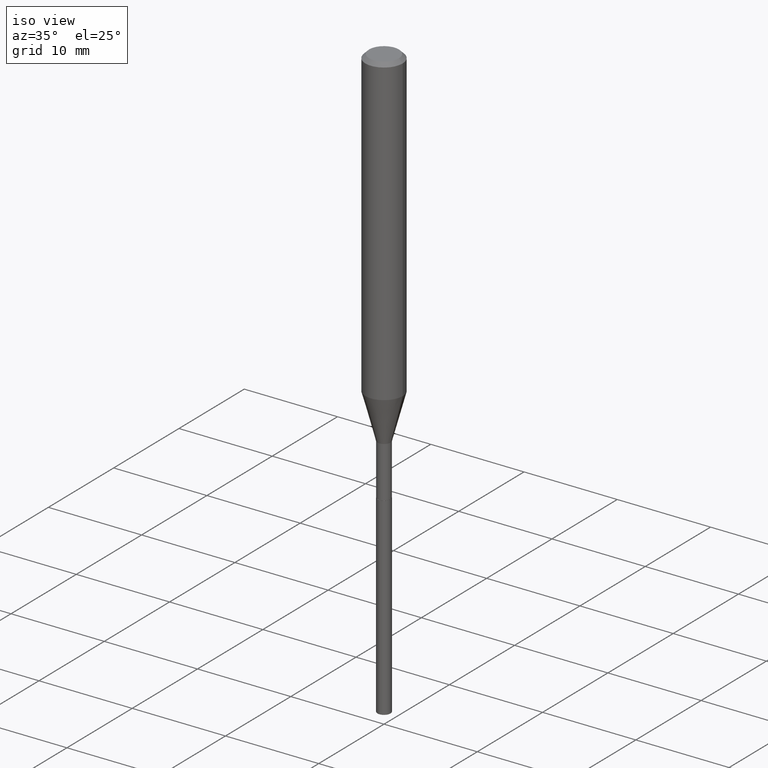
[diagram: clean part render]
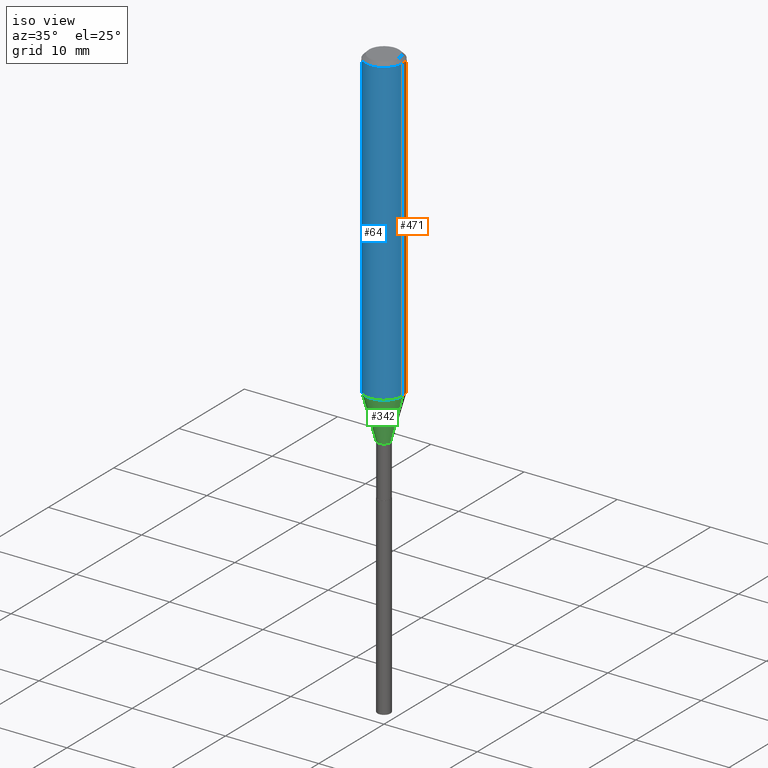
[diagram: same view with three faces highlighted in distinct colors, each labeled with its STEP entity id]
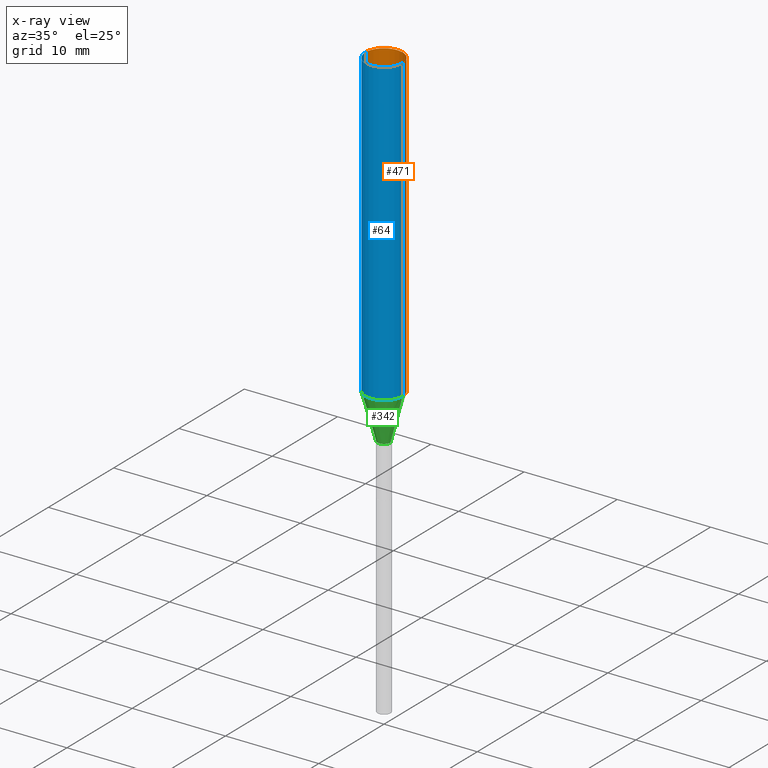
[diagram: x-ray of the same camera — body ghosted, the three highlighted faces saturated]
A machine part, iso view with three faces highlighted in distinct colors.
The next image is the same camera in x-ray (body ghosted, the three faces saturated) — at least one of them is partly hidden behind the body in this view.
Their STEP definitions:

[orange] entity #471 — the highlighted cylindrical surface (edge-blend (fillet) strip) has radius 2.0003 mm, axis along (-0, 0, 1).
#15 = CARTESIAN_POINT ( 'NONE',  ( -0.07875000000000008382, 5.595524044110794920E-16, -3.873661383575742696E-30 ) ) ;
#18 = VERTEX_POINT ( 'NONE', #246 ) ;
#33 = CARTESIAN_POINT ( 'NONE',  ( 0.07875000000000000056, -6.048991419545733705E-16, -0.01575000000000009032 ) ) ;
#36 = DIRECTION ( 'NONE',  ( -2.445468806185136597E-29, 3.491481338843145583E-15, 1.000000000000000000 ) ) ;
#51 = AXIS2_PLACEMENT_3D ( 'NONE', #70, #36, #259 ) ;
#63 = DIRECTION ( 'NONE',  ( -2.445468806185136877E-29, 3.491481338843145188E-15, 1.000000000000000000 ) ) ;
#67 = CYLINDRICAL_SURFACE ( 'NONE', #217, 0.07875000000000008382 ) ;
#70 = CARTESIAN_POINT ( 'NONE',  ( 3.142229329679264219E-29, -4.486270705720130706E-15, -1.284918998652472943 ) ) ;
#92 = LINE ( 'NONE', #15, #302 ) ;
#104 = DIRECTION ( 'NONE',  ( 1.000000000000000000, -6.982962677686267499E-15, 4.876176775795935232E-29 ) ) ;
#115 = CARTESIAN_POINT ( 'NONE',  ( 0.07875000000000008382, -5.499083108677941345E-16, 3.839989210939303220E-30 ) ) ;
#151 = CIRCLE ( 'NONE', #51, 0.07875000000000015321 ) ;
#165 = ORIENTED_EDGE ( 'NONE', *, *, #294, .F. ) ;
#181 = EDGE_CURVE ( 'NONE', #348, #18, #278, .T. ) ;
#186 = ORIENTED_EDGE ( 'NONE', *, *, #181, .F. ) ;
#193 = DIRECTION ( 'NONE',  ( -2.445468806185136597E-29, 3.491481338843145583E-15, 1.000000000000000000 ) ) ;
#196 = DIRECTION ( 'NONE',  ( -2.445468806185136877E-29, 3.491481338843145188E-15, 1.000000000000000000 ) ) ;
#217 = AXIS2_PLACEMENT_3D ( 'NONE', #340, #329, #104 ) ;
#232 = CARTESIAN_POINT ( 'NONE',  ( 3.851613369741612172E-31, -5.499083108677985842E-17, -0.01575000000000009032 ) ) ;
#246 = CARTESIAN_POINT ( 'NONE',  ( -0.07875000000000000056, -1.711078363992374641E-15, -0.01575000000000009032 ) ) ;
#255 = FACE_OUTER_BOUND ( 'NONE', #397, .T. ) ;
#259 = DIRECTION ( 'NONE',  ( 1.000000000000000000, -6.982962677686272233E-15, 0.000000000000000000 ) ) ;
#278 = CIRCLE ( 'NONE', #401, 0.07875000000000000056 ) ;
#291 = CARTESIAN_POINT ( 'NONE',  ( 0.07875000000000015321, -5.036179016587925630E-15, -1.284918998652472943 ) ) ;
#294 = EDGE_CURVE ( 'NONE', #438, #348, #407, .T. ) ;
#302 = VECTOR ( 'NONE', #63, 39.37007874015748143 ) ;
#314 = VECTOR ( 'NONE', #196, 39.37007874015748143 ) ;
#329 = DIRECTION ( 'NONE',  ( -2.445468806185136597E-29, 3.491481338843145583E-15, 1.000000000000000000 ) ) ;
#340 = CARTESIAN_POINT ( 'NONE',  ( 0.000000000000000000, 0.000000000000000000, 0.000000000000000000 ) ) ;
#347 = DIRECTION ( 'NONE',  ( 1.000000000000000000, -6.982962677686265922E-15, 0.000000000000000000 ) ) ;
#348 = VERTEX_POINT ( 'NONE', #33 ) ;
#350 = CARTESIAN_POINT ( 'NONE',  ( -0.07875000000000015321, -3.926718301309051116E-15, -1.284918998652472943 ) ) ;
#375 = ORIENTED_EDGE ( 'NONE', *, *, #399, .T. ) ;
#397 = EDGE_LOOP ( 'NONE', ( #375, #490, #186, #165 ) ) ;
#399 = EDGE_CURVE ( 'NONE', #438, #425, #151, .T. ) ;
#401 = AXIS2_PLACEMENT_3D ( 'NONE', #232, #193, #347 ) ;
#407 = LINE ( 'NONE', #115, #314 ) ;
#425 = VERTEX_POINT ( 'NONE', #350 ) ;
#438 = VERTEX_POINT ( 'NONE', #291 ) ;
#451 = EDGE_CURVE ( 'NONE', #425, #18, #92, .T. ) ;
#471 = ADVANCED_FACE ( 'NONE', ( #255 ), #67, .T. ) ;
#490 = ORIENTED_EDGE ( 'NONE', *, *, #451, .T. ) ;

[blue] entity #64 — the highlighted cylindrical surface (edge-blend (fillet) strip) has radius 2.0003 mm, axis along (-0, 0, 1).
#15 = CARTESIAN_POINT ( 'NONE',  ( -0.07875000000000008382, 5.595524044110794920E-16, -3.873661383575742696E-30 ) ) ;
#18 = VERTEX_POINT ( 'NONE', #246 ) ;
#33 = CARTESIAN_POINT ( 'NONE',  ( 0.07875000000000000056, -6.048991419545733705E-16, -0.01575000000000009032 ) ) ;
#40 = CYLINDRICAL_SURFACE ( 'NONE', #98, 0.07875000000000008382 ) ;
#53 = DIRECTION ( 'NONE',  ( -2.445468806185136597E-29, 3.491481338843145583E-15, 1.000000000000000000 ) ) ;
#61 = EDGE_CURVE ( 'NONE', #425, #438, #461, .T. ) ;
#63 = DIRECTION ( 'NONE',  ( -2.445468806185136877E-29, 3.491481338843145188E-15, 1.000000000000000000 ) ) ;
#64 = ADVANCED_FACE ( 'NONE', ( #205 ), #40, .T. ) ;
#77 = DIRECTION ( 'NONE',  ( 1.000000000000000000, -6.982962677686272233E-15, 0.000000000000000000 ) ) ;
#92 = LINE ( 'NONE', #15, #302 ) ;
#98 = AXIS2_PLACEMENT_3D ( 'NONE', #129, #213, #253 ) ;
#115 = CARTESIAN_POINT ( 'NONE',  ( 0.07875000000000008382, -5.499083108677941345E-16, 3.839989210939303220E-30 ) ) ;
#129 = CARTESIAN_POINT ( 'NONE',  ( 0.000000000000000000, 0.000000000000000000, 0.000000000000000000 ) ) ;
#136 = DIRECTION ( 'NONE',  ( 1.000000000000000000, -6.982962677686265922E-15, 0.000000000000000000 ) ) ;
#170 = ORIENTED_EDGE ( 'NONE', *, *, #294, .T. ) ;
#171 = AXIS2_PLACEMENT_3D ( 'NONE', #280, #341, #136 ) ;
#196 = DIRECTION ( 'NONE',  ( -2.445468806185136877E-29, 3.491481338843145188E-15, 1.000000000000000000 ) ) ;
#205 = FACE_OUTER_BOUND ( 'NONE', #343, .T. ) ;
#213 = DIRECTION ( 'NONE',  ( -2.445468806185136597E-29, 3.491481338843145583E-15, 1.000000000000000000 ) ) ;
#246 = CARTESIAN_POINT ( 'NONE',  ( -0.07875000000000000056, -1.711078363992374641E-15, -0.01575000000000009032 ) ) ;
#253 = DIRECTION ( 'NONE',  ( 1.000000000000000000, -6.982962677686267499E-15, 4.876176775795935232E-29 ) ) ;
#254 = ORIENTED_EDGE ( 'NONE', *, *, #328, .F. ) ;
#265 = ORIENTED_EDGE ( 'NONE', *, *, #61, .T. ) ;
#280 = CARTESIAN_POINT ( 'NONE',  ( 3.851613369741612172E-31, -5.499083108677985842E-17, -0.01575000000000009032 ) ) ;
#291 = CARTESIAN_POINT ( 'NONE',  ( 0.07875000000000015321, -5.036179016587925630E-15, -1.284918998652472943 ) ) ;
#294 = EDGE_CURVE ( 'NONE', #438, #348, #407, .T. ) ;
#302 = VECTOR ( 'NONE', #63, 39.37007874015748143 ) ;
#314 = VECTOR ( 'NONE', #196, 39.37007874015748143 ) ;
#328 = EDGE_CURVE ( 'NONE', #18, #348, #441, .T. ) ;
#341 = DIRECTION ( 'NONE',  ( -2.445468806185136597E-29, 3.491481338843145583E-15, 1.000000000000000000 ) ) ;
#343 = EDGE_LOOP ( 'NONE', ( #344, #265, #170, #254 ) ) ;
#344 = ORIENTED_EDGE ( 'NONE', *, *, #451, .F. ) ;
#348 = VERTEX_POINT ( 'NONE', #33 ) ;
#350 = CARTESIAN_POINT ( 'NONE',  ( -0.07875000000000015321, -3.926718301309051116E-15, -1.284918998652472943 ) ) ;
#382 = CARTESIAN_POINT ( 'NONE',  ( 3.142229329679264219E-29, -4.486270705720130706E-15, -1.284918998652472943 ) ) ;
#407 = LINE ( 'NONE', #115, #314 ) ;
#425 = VERTEX_POINT ( 'NONE', #350 ) ;
#438 = VERTEX_POINT ( 'NONE', #291 ) ;
#441 = CIRCLE ( 'NONE', #171, 0.07875000000000000056 ) ;
#449 = AXIS2_PLACEMENT_3D ( 'NONE', #382, #53, #77 ) ;
#451 = EDGE_CURVE ( 'NONE', #425, #18, #92, .T. ) ;
#461 = CIRCLE ( 'NONE', #449, 0.07875000000000015321 ) ;

[green] entity #342 — the highlighted conical surface has half-angle 15 deg.
#12 = AXIS2_PLACEMENT_3D ( 'NONE', #222, #228, #95 ) ;
#20 = VECTOR ( 'NONE', #267, 39.37007874015748854 ) ;
#53 = DIRECTION ( 'NONE',  ( -2.445468806185136597E-29, 3.491481338843145583E-15, 1.000000000000000000 ) ) ;
#61 = EDGE_CURVE ( 'NONE', #425, #438, #461, .T. ) ;
#77 = DIRECTION ( 'NONE',  ( 1.000000000000000000, -6.982962677686272233E-15, 0.000000000000000000 ) ) ;
#95 = DIRECTION ( 'NONE',  ( 1.000000000000000000, -6.982962677686264344E-15, 0.000000000000000000 ) ) ;
#100 = ORIENTED_EDGE ( 'NONE', *, *, #150, .F. ) ;
#113 = EDGE_LOOP ( 'NONE', ( #100, #420, #241, #299 ) ) ;
#127 = CARTESIAN_POINT ( 'NONE',  ( 3.609511957929261074E-29, -5.153426456132482850E-15, -1.475999999999999757 ) ) ;
#128 = VERTEX_POINT ( 'NONE', #176 ) ;
#150 = EDGE_CURVE ( 'NONE', #128, #425, #264, .T. ) ;
#176 = CARTESIAN_POINT ( 'NONE',  ( -0.02754999999999997035, -5.335450213293403869E-15, -1.475999999999999757 ) ) ;
#222 = CARTESIAN_POINT ( 'NONE',  ( 3.609511957929261074E-29, -5.153426456132482850E-15, -1.475999999999999757 ) ) ;
#228 = DIRECTION ( 'NONE',  ( -2.445468806185136597E-29, 3.491481338843145583E-15, 1.000000000000000000 ) ) ;
#234 = DIRECTION ( 'NONE',  ( 0.2588190451025212391, 1.565188264969622362E-15, 0.9659258262890679791 ) ) ;
#241 = ORIENTED_EDGE ( 'NONE', *, *, #296, .T. ) ;
#264 = LINE ( 'NONE', #411, #20 ) ;
#267 = DIRECTION ( 'NONE',  ( -0.2588190451025212391, 5.211531920934549464E-15, 0.9659258262890679791 ) ) ;
#272 = VECTOR ( 'NONE', #234, 39.37007874015748854 ) ;
#291 = CARTESIAN_POINT ( 'NONE',  ( 0.07875000000000015321, -5.036179016587925630E-15, -1.284918998652472943 ) ) ;
#293 = DIRECTION ( 'NONE',  ( -2.445468806185136597E-29, 3.491481338843145583E-15, 1.000000000000000000 ) ) ;
#296 = EDGE_CURVE ( 'NONE', #406, #438, #464, .T. ) ;
#299 = ORIENTED_EDGE ( 'NONE', *, *, #61, .F. ) ;
#300 = FACE_OUTER_BOUND ( 'NONE', #113, .T. ) ;
#315 = AXIS2_PLACEMENT_3D ( 'NONE', #127, #293, #439 ) ;
#342 = ADVANCED_FACE ( 'NONE', ( #300 ), #458, .T. ) ;
#350 = CARTESIAN_POINT ( 'NONE',  ( -0.07875000000000015321, -3.926718301309051116E-15, -1.284918998652472943 ) ) ;
#382 = CARTESIAN_POINT ( 'NONE',  ( 3.142229329679264219E-29, -4.486270705720130706E-15, -1.284918998652472943 ) ) ;
#402 = CARTESIAN_POINT ( 'NONE',  ( 0.02754999999999997035, -5.345807077902738854E-15, -1.475999999999999757 ) ) ;
#406 = VERTEX_POINT ( 'NONE', #402 ) ;
#411 = CARTESIAN_POINT ( 'NONE',  ( -0.02754999999999997035, -4.957671932430575509E-15, -1.475999999999999757 ) ) ;
#420 = ORIENTED_EDGE ( 'NONE', *, *, #467, .T. ) ;
#421 = CARTESIAN_POINT ( 'NONE',  ( 0.02754999999999997035, -5.345807077902738854E-15, -1.475999999999999757 ) ) ;
#425 = VERTEX_POINT ( 'NONE', #350 ) ;
#436 = CIRCLE ( 'NONE', #315, 0.02754999999999997035 ) ;
#438 = VERTEX_POINT ( 'NONE', #291 ) ;
#439 = DIRECTION ( 'NONE',  ( 1.000000000000000000, -6.982962677686264344E-15, 0.000000000000000000 ) ) ;
#449 = AXIS2_PLACEMENT_3D ( 'NONE', #382, #53, #77 ) ;
#458 = CONICAL_SURFACE ( 'NONE', #12, 0.02754999999999997035, 0.2617993877991499629 ) ;
#461 = CIRCLE ( 'NONE', #449, 0.07875000000000015321 ) ;
#464 = LINE ( 'NONE', #421, #272 ) ;
#467 = EDGE_CURVE ( 'NONE', #128, #406, #436, .T. ) ;